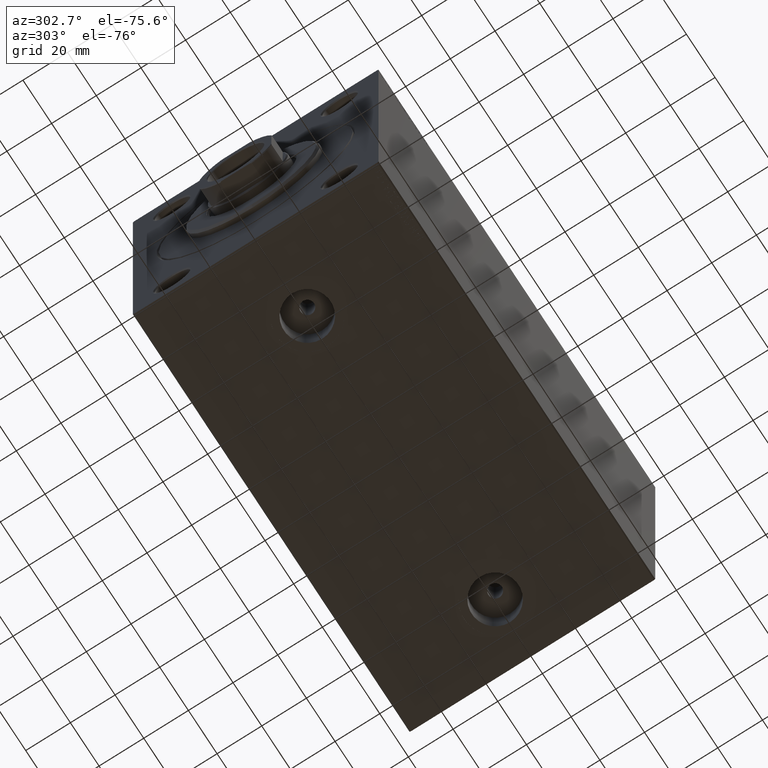
[diagram: clean part render]
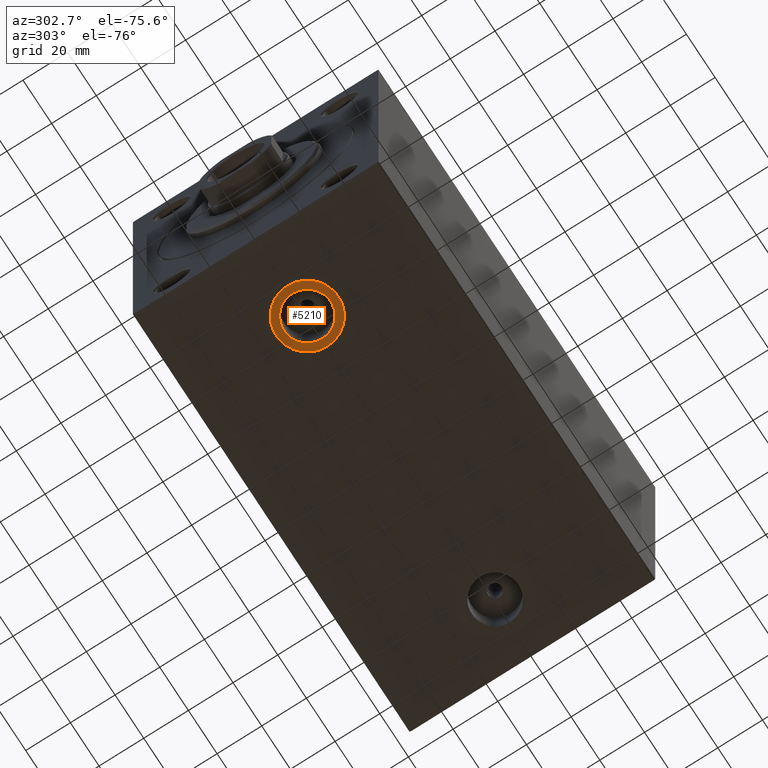
[diagram: same view with one face highlighted and labeled with its STEP entity id]
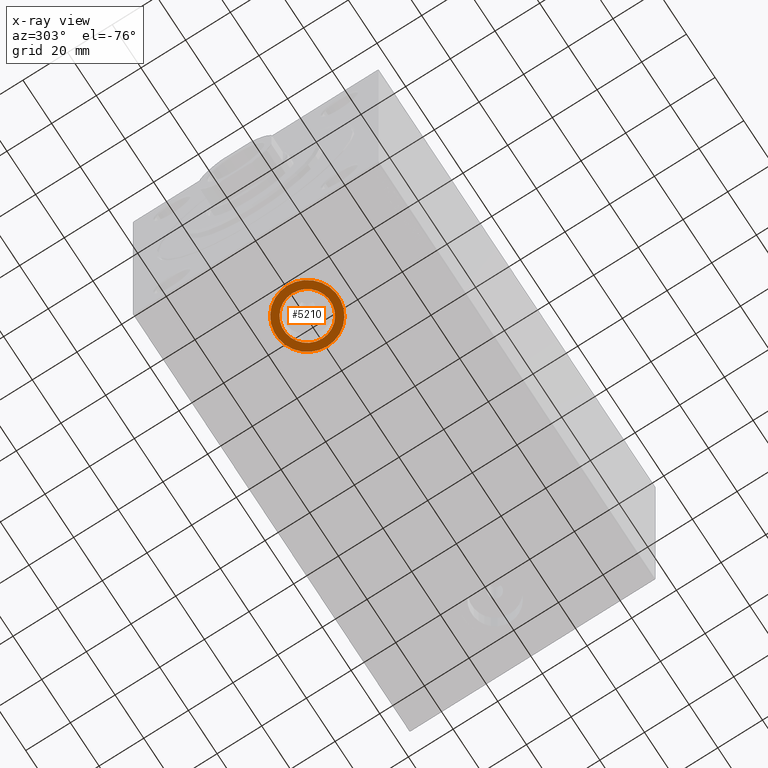
[diagram: x-ray of the same camera — body ghosted, the highlighted face saturated]
A machine part, auxiliary view. The second image highlights one B-rep face of the part: STEP entity #5210.
The next image is the same camera in x-ray: the body ghosted, the highlighted face saturated — about 0% of this face is hidden behind the body in this view.
In plain terms, the highlighted planar face has unit normal (0, 0, -1).
Its self-contained STEP definition (entity closure, byte-faithful):
#836 = DIRECTION ( 'NONE',  ( 0.000000000000000000, 0.000000000000000000, -1.000000000000000000 ) ) ;
#1998 = CIRCLE ( 'NONE', #42577, 13.99999999999999822 ) ;
#3918 = AXIS2_PLACEMENT_3D ( 'NONE', #29639, #29405, #36565 ) ;
#5210 = ADVANCED_FACE ( 'NONE', ( #6801, #10262 ), #20893, .T. ) ;
#6801 = FACE_BOUND ( 'NONE', #22802, .T. ) ;
#7386 = EDGE_LOOP ( 'NONE', ( #7454, #39838 ) ) ;
#7454 = ORIENTED_EDGE ( 'NONE', *, *, #36615, .T. ) ;
#7765 = CARTESIAN_POINT ( 'NONE',  ( 46.47999999999999687, 5.489560609482857396E-15, -69.90000000000000568 ) ) ;
#9944 = VERTEX_POINT ( 'NONE', #33182 ) ;
#10071 = AXIS2_PLACEMENT_3D ( 'NONE', #41562, #27040, #24007 ) ;
#10262 = FACE_OUTER_BOUND ( 'NONE', #7386, .T. ) ;
#10492 = DIRECTION ( 'NONE',  ( 0.000000000000000000, 0.000000000000000000, -1.000000000000000000 ) ) ;
#13957 = CARTESIAN_POINT ( 'NONE',  ( 0.000000000000000000, 0.000000000000000000, -69.90000000000000568 ) ) ;
#14186 = ORIENTED_EDGE ( 'NONE', *, *, #23196, .F. ) ;
#15057 = CIRCLE ( 'NONE', #25409, 10.48000000000000043 ) ;
#15454 = DIRECTION ( 'NONE',  ( -1.000000000000000000, 0.000000000000000000, 0.000000000000000000 ) ) ;
#18401 = CARTESIAN_POINT ( 'NONE',  ( 36.00000000000000000, 4.206130763976431907E-15, -69.90000000000000568 ) ) ;
#20095 = VERTEX_POINT ( 'NONE', #7765 ) ;
#20140 = CARTESIAN_POINT ( 'NONE',  ( 25.51999999999999602, 4.206130763976431907E-15, -69.90000000000000568 ) ) ;
#20533 = AXIS2_PLACEMENT_3D ( 'NONE', #13957, #10492, #28083 ) ;
#20893 = PLANE ( 'NONE',  #20533 ) ;
#21524 = ORIENTED_EDGE ( 'NONE', *, *, #35431, .F. ) ;
#21585 = EDGE_CURVE ( 'NONE', #28912, #9944, #31971, .T. ) ;
#22092 = DIRECTION ( 'NONE',  ( -1.000000000000000000, 0.000000000000000000, 0.000000000000000000 ) ) ;
#22394 = CARTESIAN_POINT ( 'NONE',  ( 36.00000000000000000, 4.206130763976431907E-15, -69.90000000000000568 ) ) ;
#22802 = EDGE_LOOP ( 'NONE', ( #14186, #21524 ) ) ;
#23196 = EDGE_CURVE ( 'NONE', #25478, #20095, #15057, .T. ) ;
#24007 = DIRECTION ( 'NONE',  ( -1.000000000000000000, 0.000000000000000000, 0.000000000000000000 ) ) ;
#25409 = AXIS2_PLACEMENT_3D ( 'NONE', #22394, #44102, #15454 ) ;
#25478 = VERTEX_POINT ( 'NONE', #20140 ) ;
#27040 = DIRECTION ( 'NONE',  ( 0.000000000000000000, 0.000000000000000000, -1.000000000000000000 ) ) ;
#28083 = DIRECTION ( 'NONE',  ( -1.000000000000000000, 0.000000000000000000, -0.000000000000000000 ) ) ;
#28549 = CIRCLE ( 'NONE', #10071, 10.48000000000000043 ) ;
#28912 = VERTEX_POINT ( 'NONE', #37367 ) ;
#29405 = DIRECTION ( 'NONE',  ( 0.000000000000000000, 0.000000000000000000, -1.000000000000000000 ) ) ;
#29639 = CARTESIAN_POINT ( 'NONE',  ( 36.00000000000000000, 4.206130763976431907E-15, -69.90000000000000568 ) ) ;
#31971 = CIRCLE ( 'NONE', #3918, 13.99999999999999822 ) ;
#33182 = CARTESIAN_POINT ( 'NONE',  ( 22.00000000000000000, 4.206130763976431907E-15, -69.90000000000000568 ) ) ;
#35431 = EDGE_CURVE ( 'NONE', #20095, #25478, #28549, .T. ) ;
#36565 = DIRECTION ( 'NONE',  ( -1.000000000000000000, 0.000000000000000000, 0.000000000000000000 ) ) ;
#36615 = EDGE_CURVE ( 'NONE', #9944, #28912, #1998, .T. ) ;
#37367 = CARTESIAN_POINT ( 'NONE',  ( 50.00000000000000000, 5.920636282782727137E-15, -69.90000000000000568 ) ) ;
#39838 = ORIENTED_EDGE ( 'NONE', *, *, #21585, .T. ) ;
#41562 = CARTESIAN_POINT ( 'NONE',  ( 36.00000000000000000, 4.206130763976431907E-15, -69.90000000000000568 ) ) ;
#42577 = AXIS2_PLACEMENT_3D ( 'NONE', #18401, #836, #22092 ) ;
#44102 = DIRECTION ( 'NONE',  ( 0.000000000000000000, 0.000000000000000000, -1.000000000000000000 ) ) ;